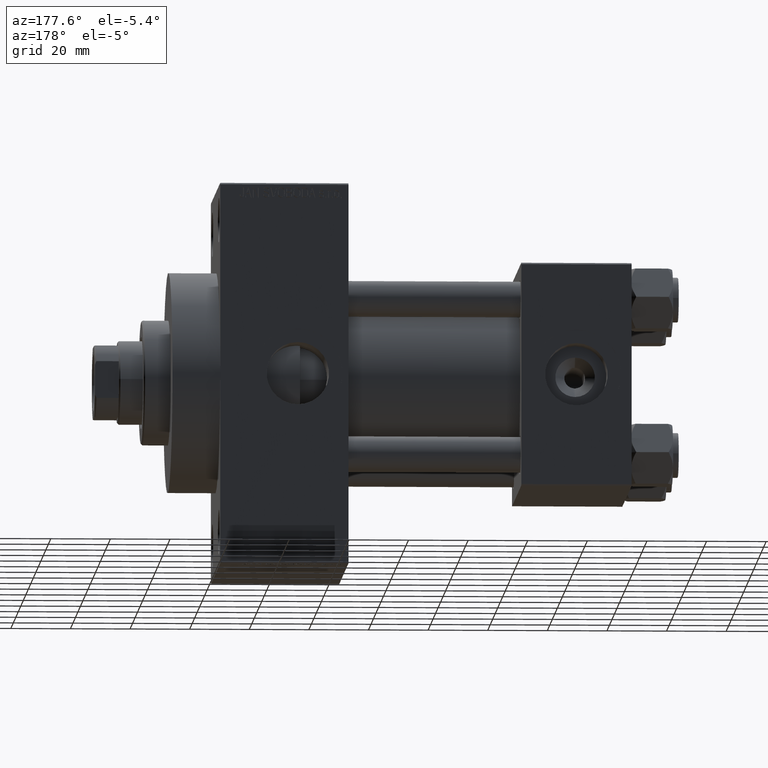
[diagram: clean part render]
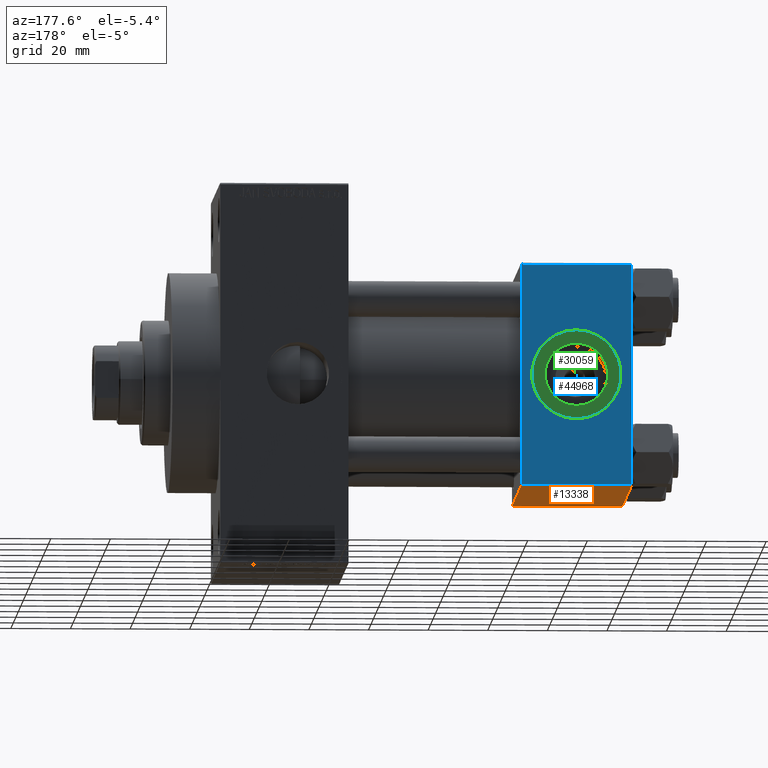
[diagram: same view with three faces highlighted in distinct colors, each labeled with its STEP entity id]
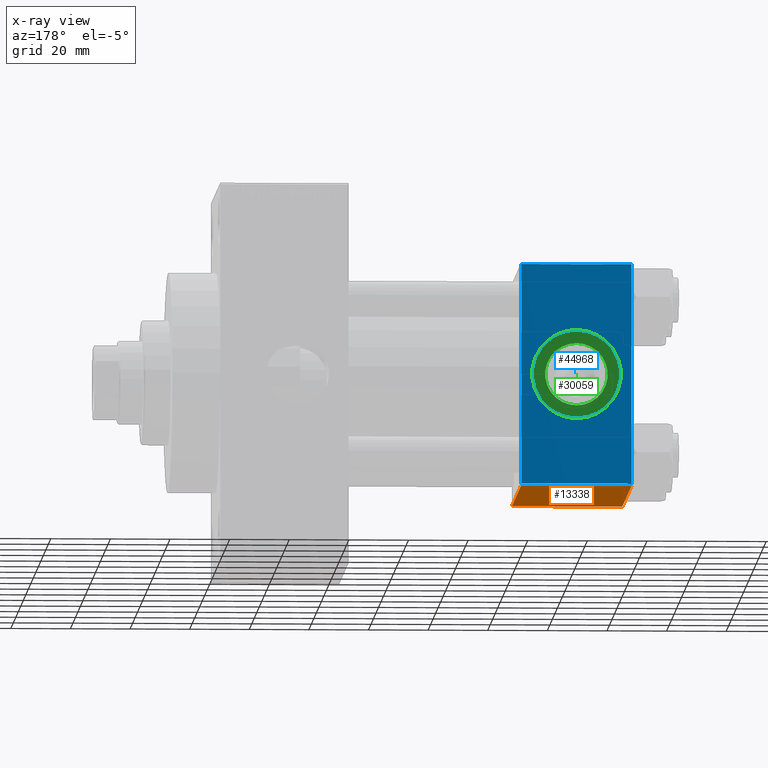
[diagram: x-ray of the same camera — body ghosted, the three highlighted faces saturated]
A machine part, auxiliary view with three faces highlighted in distinct colors.
The next image is the same camera in x-ray (body ghosted, the three faces saturated) — at least one of them is partly hidden behind the body in this view.
Their STEP definitions:

[orange] entity #13338 — the highlighted planar face has unit normal (0, 0, -1).
#324 = VECTOR ( 'NONE', #23138, 1000.000000000000000 ) ;
#1913 = PLANE ( 'NONE',  #5867 ) ;
#3511 = VERTEX_POINT ( 'NONE', #4249 ) ;
#4249 = CARTESIAN_POINT ( 'NONE',  ( 37.00000000000000000, -37.00000000000002132, -37.50000000000000711 ) ) ;
#5004 = LINE ( 'NONE', #45335, #324 ) ;
#5867 = AXIS2_PLACEMENT_3D ( 'NONE', #13591, #31275, #9520 ) ;
#7735 = LINE ( 'NONE', #43085, #34784 ) ;
#9520 = DIRECTION ( 'NONE',  ( 0.000000000000000000, 1.000000000000000000, 9.251858538542972814E-17 ) ) ;
#9720 = LINE ( 'NONE', #27405, #42247 ) ;
#11472 = VERTEX_POINT ( 'NONE', #39911 ) ;
#13338 = ADVANCED_FACE ( 'NONE', ( #16705 ), #1913, .T. ) ;
#13591 = CARTESIAN_POINT ( 'NONE',  ( 37.00000000000000000, 37.49999999999999289, -37.50000000000000000 ) ) ;
#15370 = EDGE_LOOP ( 'NONE', ( #29641, #30946, #23679, #20547 ) ) ;
#16705 = FACE_OUTER_BOUND ( 'NONE', #15370, .T. ) ;
#18789 = LINE ( 'NONE', #30233, #36893 ) ;
#20547 = ORIENTED_EDGE ( 'NONE', *, *, #36770, .T. ) ;
#23138 = DIRECTION ( 'NONE',  ( 0.000000000000000000, -1.000000000000000000, -9.251858538542972814E-17 ) ) ;
#23679 = ORIENTED_EDGE ( 'NONE', *, *, #45919, .T. ) ;
#27405 = CARTESIAN_POINT ( 'NONE',  ( 37.00000000000000000, 36.99999999999997868, -37.50000000000000000 ) ) ;
#29641 = ORIENTED_EDGE ( 'NONE', *, *, #38150, .F. ) ;
#30233 = CARTESIAN_POINT ( 'NONE',  ( 0.000000000000000000, -37.00000000000002132, -37.50000000000000711 ) ) ;
#30946 = ORIENTED_EDGE ( 'NONE', *, *, #36500, .T. ) ;
#31275 = DIRECTION ( 'NONE',  ( 0.000000000000000000, 9.251858538542972814E-17, -1.000000000000000000 ) ) ;
#31423 = CARTESIAN_POINT ( 'NONE',  ( 0.000000000000000000, -37.00000000000002132, -37.50000000000000711 ) ) ;
#31551 = CARTESIAN_POINT ( 'NONE',  ( 0.000000000000000000, 36.99999999999997868, -37.50000000000000000 ) ) ;
#32120 = DIRECTION ( 'NONE',  ( 0.000000000000000000, -1.000000000000000000, -9.251858538542972814E-17 ) ) ;
#34784 = VECTOR ( 'NONE', #32120, 1000.000000000000000 ) ;
#36500 = EDGE_CURVE ( 'NONE', #42312, #11472, #9720, .T. ) ;
#36770 = EDGE_CURVE ( 'NONE', #3511, #41056, #18789, .T. ) ;
#36893 = VECTOR ( 'NONE', #44317, 1000.000000000000000 ) ;
#38150 = EDGE_CURVE ( 'NONE', #42312, #41056, #5004, .T. ) ;
#39911 = CARTESIAN_POINT ( 'NONE',  ( 37.00000000000000000, 36.99999999999997868, -37.50000000000000000 ) ) ;
#41056 = VERTEX_POINT ( 'NONE', #31423 ) ;
#41966 = DIRECTION ( 'NONE',  ( 1.000000000000000000, 0.000000000000000000, 0.000000000000000000 ) ) ;
#42247 = VECTOR ( 'NONE', #41966, 1000.000000000000000 ) ;
#42312 = VERTEX_POINT ( 'NONE', #31551 ) ;
#43085 = CARTESIAN_POINT ( 'NONE',  ( 37.00000000000000000, 37.49999999999999289, -37.50000000000000000 ) ) ;
#44317 = DIRECTION ( 'NONE',  ( -1.000000000000000000, 0.000000000000000000, 0.000000000000000000 ) ) ;
#45335 = CARTESIAN_POINT ( 'NONE',  ( 0.000000000000000000, 37.49999999999999289, -37.50000000000000000 ) ) ;
#45919 = EDGE_CURVE ( 'NONE', #11472, #3511, #7735, .T. ) ;

[blue] entity #44968 — the highlighted planar face has unit normal (0, 1, 0).
#402 = DIRECTION ( 'NONE',  ( 0.000000000000000000, 0.000000000000000000, 1.000000000000000000 ) ) ;
#1278 = PLANE ( 'NONE',  #24813 ) ;
#2555 = CARTESIAN_POINT ( 'NONE',  ( 37.00000000000000000, 37.49999999999999289, 37.50000000000000000 ) ) ;
#2713 = VERTEX_POINT ( 'NONE', #32662 ) ;
#2787 = DIRECTION ( 'NONE',  ( 0.000000000000000000, 0.000000000000000000, -1.000000000000000000 ) ) ;
#5008 = VECTOR ( 'NONE', #36140, 1000.000000000000000 ) ;
#5647 = LINE ( 'NONE', #2555, #45163 ) ;
#5791 = DIRECTION ( 'NONE',  ( 0.000000000000000000, -0.000000000000000000, 1.000000000000000000 ) ) ;
#7361 = AXIS2_PLACEMENT_3D ( 'NONE', #34295, #30728, #12557 ) ;
#7466 = DIRECTION ( 'NONE',  ( -1.000000000000000000, 0.000000000000000000, 0.000000000000000000 ) ) ;
#7657 = VECTOR ( 'NONE', #18074, 1000.000000000000000 ) ;
#8836 = CIRCLE ( 'NONE', #37854, 15.00000000000000178 ) ;
#10025 = EDGE_LOOP ( 'NONE', ( #23665, #37476, #23704, #25628 ) ) ;
#10552 = ORIENTED_EDGE ( 'NONE', *, *, #41661, .F. ) ;
#11851 = EDGE_CURVE ( 'NONE', #24394, #21568, #26423, .T. ) ;
#12557 = DIRECTION ( 'NONE',  ( 0.000000000000000000, 0.000000000000000000, 1.000000000000000000 ) ) ;
#12597 = CARTESIAN_POINT ( 'NONE',  ( 18.50000000000000000, 37.49999999999999289, 15.00000000000000178 ) ) ;
#17830 = CARTESIAN_POINT ( 'NONE',  ( 37.00000000000000000, 37.49999999999999289, 37.00000000000000000 ) ) ;
#18074 = DIRECTION ( 'NONE',  ( 1.000000000000000000, 0.000000000000000000, 0.000000000000000000 ) ) ;
#19672 = FACE_OUTER_BOUND ( 'NONE', #10025, .T. ) ;
#20953 = LINE ( 'NONE', #17830, #7657 ) ;
#21128 = CARTESIAN_POINT ( 'NONE',  ( 0.000000000000000000, 37.49999999999999289, 37.50000000000000000 ) ) ;
#21568 = VERTEX_POINT ( 'NONE', #31766 ) ;
#21575 = LINE ( 'NONE', #40180, #28314 ) ;
#22123 = VERTEX_POINT ( 'NONE', #35632 ) ;
#23665 = ORIENTED_EDGE ( 'NONE', *, *, #32446, .T. ) ;
#23704 = ORIENTED_EDGE ( 'NONE', *, *, #44684, .F. ) ;
#24394 = VERTEX_POINT ( 'NONE', #12597 ) ;
#24813 = AXIS2_PLACEMENT_3D ( 'NONE', #41138, #38495, #5791 ) ;
#25383 = EDGE_CURVE ( 'NONE', #41466, #2713, #20953, .T. ) ;
#25628 = ORIENTED_EDGE ( 'NONE', *, *, #25383, .T. ) ;
#26423 = CIRCLE ( 'NONE', #7361, 15.00000000000000178 ) ;
#26959 = CARTESIAN_POINT ( 'NONE',  ( 0.000000000000000000, 37.49999999999999289, 37.00000000000000000 ) ) ;
#27372 = EDGE_CURVE ( 'NONE', #41185, #22123, #21575, .T. ) ;
#28314 = VECTOR ( 'NONE', #7466, 1000.000000000000000 ) ;
#30728 = DIRECTION ( 'NONE',  ( 0.000000000000000000, 1.000000000000000000, 0.000000000000000000 ) ) ;
#31766 = CARTESIAN_POINT ( 'NONE',  ( 18.50000000000000355, 37.49999999999999289, -15.00000000000000178 ) ) ;
#32446 = EDGE_CURVE ( 'NONE', #2713, #41185, #5647, .T. ) ;
#32662 = CARTESIAN_POINT ( 'NONE',  ( 37.00000000000000000, 37.49999999999999289, 37.00000000000000000 ) ) ;
#34295 = CARTESIAN_POINT ( 'NONE',  ( 18.50000000000000000, 37.49999999999999289, 0.000000000000000000 ) ) ;
#35632 = CARTESIAN_POINT ( 'NONE',  ( 0.000000000000000000, 37.49999999999999289, -36.99999999999998579 ) ) ;
#36140 = DIRECTION ( 'NONE',  ( 0.000000000000000000, 0.000000000000000000, -1.000000000000000000 ) ) ;
#36460 = CARTESIAN_POINT ( 'NONE',  ( 18.50000000000000000, 37.49999999999999289, 0.000000000000000000 ) ) ;
#36548 = ORIENTED_EDGE ( 'NONE', *, *, #11851, .F. ) ;
#37476 = ORIENTED_EDGE ( 'NONE', *, *, #27372, .T. ) ;
#37854 = AXIS2_PLACEMENT_3D ( 'NONE', #36460, #47204, #402 ) ;
#38266 = FACE_BOUND ( 'NONE', #46928, .T. ) ;
#38495 = DIRECTION ( 'NONE',  ( -0.000000000000000000, 1.000000000000000000, 0.000000000000000000 ) ) ;
#39967 = CARTESIAN_POINT ( 'NONE',  ( 37.00000000000000000, 37.49999999999999289, -36.99999999999998579 ) ) ;
#40180 = CARTESIAN_POINT ( 'NONE',  ( 37.00000000000000000, 37.49999999999999289, -36.99999999999998579 ) ) ;
#41138 = CARTESIAN_POINT ( 'NONE',  ( 37.00000000000000000, 37.49999999999999289, 37.50000000000000000 ) ) ;
#41185 = VERTEX_POINT ( 'NONE', #39967 ) ;
#41466 = VERTEX_POINT ( 'NONE', #26959 ) ;
#41661 = EDGE_CURVE ( 'NONE', #21568, #24394, #8836, .T. ) ;
#42842 = LINE ( 'NONE', #21128, #5008 ) ;
#44684 = EDGE_CURVE ( 'NONE', #41466, #22123, #42842, .T. ) ;
#44968 = ADVANCED_FACE ( 'NONE', ( #38266, #19672 ), #1278, .T. ) ;
#45163 = VECTOR ( 'NONE', #2787, 1000.000000000000000 ) ;
#46928 = EDGE_LOOP ( 'NONE', ( #36548, #10552 ) ) ;
#47204 = DIRECTION ( 'NONE',  ( 0.000000000000000000, 1.000000000000000000, 0.000000000000000000 ) ) ;

[green] entity #30059 — the highlighted planar face has unit normal (0, 1, 0).
#457 = CARTESIAN_POINT ( 'NONE',  ( 18.50000000000000000, 37.29999999999999005, 0.000000000000000000 ) ) ;
#1006 = CARTESIAN_POINT ( 'NONE',  ( 18.50000000000000000, 37.29999999999999005, 10.48000000000000043 ) ) ;
#1435 = DIRECTION ( 'NONE',  ( 0.000000000000000000, 0.000000000000000000, 1.000000000000000000 ) ) ;
#1454 = CIRCLE ( 'NONE', #3739, 10.48000000000000043 ) ;
#3739 = AXIS2_PLACEMENT_3D ( 'NONE', #457, #17896, #47015 ) ;
#4083 = VERTEX_POINT ( 'NONE', #1006 ) ;
#4248 = FACE_OUTER_BOUND ( 'NONE', #38843, .T. ) ;
#4352 = CIRCLE ( 'NONE', #31042, 15.00000000000000178 ) ;
#5296 = EDGE_CURVE ( 'NONE', #4083, #5748, #31415, .T. ) ;
#5555 = AXIS2_PLACEMENT_3D ( 'NONE', #44582, #22157, #36712 ) ;
#5748 = VERTEX_POINT ( 'NONE', #32498 ) ;
#6122 = CARTESIAN_POINT ( 'NONE',  ( 18.50000000000000000, 37.29999999999999005, 0.000000000000000000 ) ) ;
#10809 = AXIS2_PLACEMENT_3D ( 'NONE', #6122, #13527, #24030 ) ;
#11793 = ORIENTED_EDGE ( 'NONE', *, *, #30566, .T. ) ;
#12461 = EDGE_CURVE ( 'NONE', #15707, #37056, #4352, .T. ) ;
#13230 = DIRECTION ( 'NONE',  ( 0.000000000000000000, 1.000000000000000000, 0.000000000000000000 ) ) ;
#13527 = DIRECTION ( 'NONE',  ( 0.000000000000000000, 1.000000000000000000, 0.000000000000000000 ) ) ;
#14732 = AXIS2_PLACEMENT_3D ( 'NONE', #20878, #13230, #28729 ) ;
#15060 = CARTESIAN_POINT ( 'NONE',  ( 18.50000000000000000, 37.29999999999999005, 0.000000000000000000 ) ) ;
#15707 = VERTEX_POINT ( 'NONE', #39199 ) ;
#17001 = EDGE_CURVE ( 'NONE', #5748, #4083, #1454, .T. ) ;
#17896 = DIRECTION ( 'NONE',  ( 0.000000000000000000, 1.000000000000000000, 0.000000000000000000 ) ) ;
#18580 = PLANE ( 'NONE',  #5555 ) ;
#19347 = DIRECTION ( 'NONE',  ( 0.000000000000000000, 1.000000000000000000, 0.000000000000000000 ) ) ;
#20066 = ORIENTED_EDGE ( 'NONE', *, *, #17001, .F. ) ;
#20878 = CARTESIAN_POINT ( 'NONE',  ( 18.50000000000000000, 37.29999999999999005, 0.000000000000000000 ) ) ;
#22157 = DIRECTION ( 'NONE',  ( 0.000000000000000000, 1.000000000000000000, 0.000000000000000000 ) ) ;
#24030 = DIRECTION ( 'NONE',  ( 0.000000000000000000, 0.000000000000000000, 1.000000000000000000 ) ) ;
#28729 = DIRECTION ( 'NONE',  ( 0.000000000000000000, 0.000000000000000000, 1.000000000000000000 ) ) ;
#28891 = ORIENTED_EDGE ( 'NONE', *, *, #12461, .T. ) ;
#30021 = FACE_BOUND ( 'NONE', #37498, .T. ) ;
#30059 = ADVANCED_FACE ( 'NONE', ( #30021, #4248 ), #18580, .T. ) ;
#30566 = EDGE_CURVE ( 'NONE', #37056, #15707, #35309, .T. ) ;
#31042 = AXIS2_PLACEMENT_3D ( 'NONE', #15060, #19347, #1435 ) ;
#31415 = CIRCLE ( 'NONE', #10809, 10.48000000000000043 ) ;
#32498 = CARTESIAN_POINT ( 'NONE',  ( 18.50000000000000000, 37.29999999999999005, -10.48000000000000043 ) ) ;
#35309 = CIRCLE ( 'NONE', #14732, 15.00000000000000178 ) ;
#36712 = DIRECTION ( 'NONE',  ( 0.000000000000000000, -0.000000000000000000, 1.000000000000000000 ) ) ;
#37056 = VERTEX_POINT ( 'NONE', #37326 ) ;
#37326 = CARTESIAN_POINT ( 'NONE',  ( 18.50000000000000355, 37.29999999999999005, -15.00000000000000178 ) ) ;
#37498 = EDGE_LOOP ( 'NONE', ( #44161, #20066 ) ) ;
#38843 = EDGE_LOOP ( 'NONE', ( #28891, #11793 ) ) ;
#39199 = CARTESIAN_POINT ( 'NONE',  ( 18.50000000000000000, 37.29999999999999005, 15.00000000000000178 ) ) ;
#44161 = ORIENTED_EDGE ( 'NONE', *, *, #5296, .F. ) ;
#44582 = CARTESIAN_POINT ( 'NONE',  ( 18.50000000000000000, 37.29999999999999005, 0.000000000000000000 ) ) ;
#47015 = DIRECTION ( 'NONE',  ( 0.000000000000000000, 0.000000000000000000, 1.000000000000000000 ) ) ;